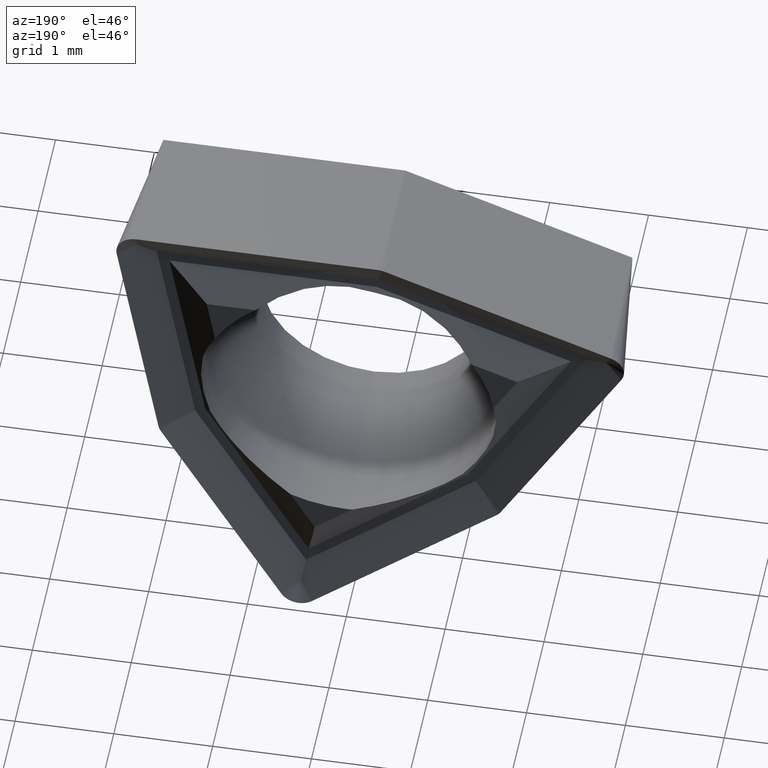
[diagram: clean part render]
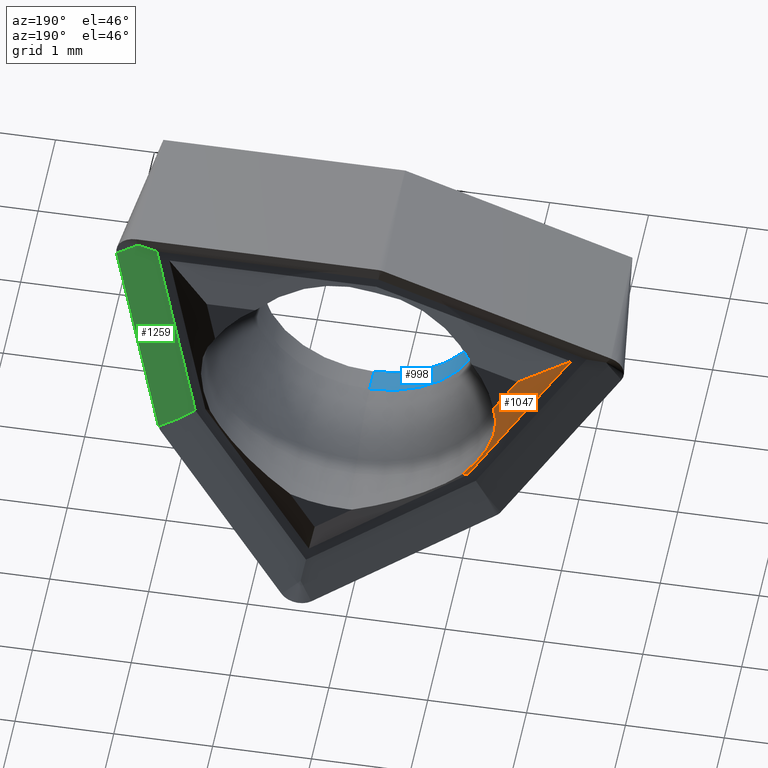
[diagram: same view with three faces highlighted in distinct colors, each labeled with its STEP entity id]
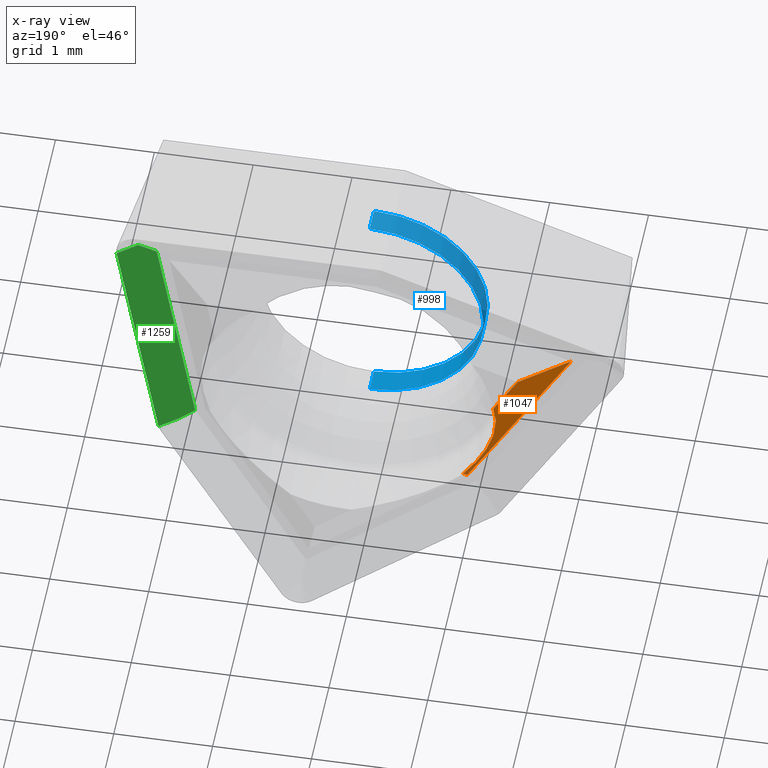
[diagram: x-ray of the same camera — body ghosted, the three highlighted faces saturated]
A machine part, auxiliary view with three faces highlighted in distinct colors.
The next image is the same camera in x-ray (body ghosted, the three faces saturated) — at least one of them is partly hidden behind the body in this view.
Their STEP definitions:

[orange] entity #1047 — the highlighted planar face has unit normal (0.433, -0.866, 0.25).
#6 = ORIENTED_EDGE ( 'NONE', *, *, #678, .T. ) ;
#35 = EDGE_CURVE ( 'NONE', #671, #658, #373, .T. ) ;
#58 = ORIENTED_EDGE ( 'NONE', *, *, #1179, .T. ) ;
#62 = LINE ( 'NONE', #275, #1003 ) ;
#227 = VECTOR ( 'NONE', #832, 1000.000000000000114 ) ;
#239 = CARTESIAN_POINT ( 'NONE',  ( -0.7587985745018965833, 0.1209591284558328289, -0.6367076040023706973 ) ) ;
#275 = CARTESIAN_POINT ( 'NONE',  ( -0.9217663674148020014, 0.000000000000000000, -0.7734538189293637123 ) ) ;
#286 = EDGE_CURVE ( 'NONE', #671, #1140, #1240, .T. ) ;
#373 = LINE ( 'NONE', #978, #377 ) ;
#377 = VECTOR ( 'NONE', #878, 1000.000000000000000 ) ;
#501 = EDGE_CURVE ( 'NONE', #823, #974, #62, .T. ) ;
#531 = CARTESIAN_POINT ( 'NONE',  ( -1.486070235163639008, 0.000000000000000000, 0.2039491509192579155 ) ) ;
#586 = DIRECTION ( 'NONE',  ( 0.8944271909999164105, 0.4472135954999567065, 0.000000000000000000 ) ) ;
#655 = ORIENTED_EDGE ( 'NONE', *, *, #501, .F. ) ;
#658 = VERTEX_POINT ( 'NONE', #783 ) ;
#671 = VERTEX_POINT ( 'NONE', #1137 ) ;
#674 = DIRECTION ( 'NONE',  ( -0.4999999999999969469, 0.000000000000000000, 0.8660254037844403729 ) ) ;
#678 = EDGE_CURVE ( 'NONE', #823, #1140, #1251, .T. ) ;
#681 = CARTESIAN_POINT ( 'NONE',  ( -1.149066664678476624, -0.1687084629627366994, -0.9641814145297975536 ) ) ;
#723 = ORIENTED_EDGE ( 'NONE', *, *, #35, .T. ) ;
#739 = LINE ( 'NONE', #1106, #227 ) ;
#753 = CARTESIAN_POINT ( 'NONE',  ( -1.486070235163639008, 0.000000000000000000, 0.2039491509192579155 ) ) ;
#774 = CARTESIAN_POINT ( 'NONE',  ( -0.9217663674148020014, 0.000000000000000000, -0.7734538189293637123 ) ) ;
#783 = CARTESIAN_POINT ( 'NONE',  ( -2.238771884344221252, -0.2000000000000000111, 0.8148463272133634749 ) ) ;
#823 = VERTEX_POINT ( 'NONE', #753 ) ;
#831 = CARTESIAN_POINT ( 'NONE',  ( -1.425364703757135976, -0.2118027706945900812, -0.6349022338310624791 ) ) ;
#832 = DIRECTION ( 'NONE',  ( 0.8809821475704302518, 0.3479270227670967497, -0.3206512786355557032 ) ) ;
#878 = DIRECTION ( 'NONE',  ( -0.4999999999999969469, -0.000000000000000000, 0.8660254037844403729 ) ) ;
#914 = EDGE_LOOP ( 'NONE', ( #6, #1158, #723, #58, #655 ) ) ;
#915 = CARTESIAN_POINT ( 'NONE',  ( -1.544514371942845576, -0.1521548644329672184, -0.2219025464079635024 ) ) ;
#918 = AXIS2_PLACEMENT_3D ( 'NONE', #774, #1073, #586 ) ;
#974 = VERTEX_POINT ( 'NONE', #1207 ) ;
#978 = CARTESIAN_POINT ( 'NONE',  ( -2.177853691503323308, -0.2000000000000000111, 0.7093329221076485336 ) ) ;
#1003 = VECTOR ( 'NONE', #674, 1000.000000000000000 ) ;
#1047 = ADVANCED_FACE ( 'NONE', ( #1266 ), #1098, .F. ) ;
#1073 = DIRECTION ( 'NONE',  ( 0.4330127018922184656, -0.8660254037844398178, 0.2499999999999975020 ) ) ;
#1098 = PLANE ( 'NONE',  #918 ) ;
#1106 = CARTESIAN_POINT ( 'NONE',  ( -0.7066256790643803409, 0.4050917934228667194, 0.2571907139475794746 ) ) ;
#1120 = CARTESIAN_POINT ( 'NONE',  ( -1.149066664678476624, -0.1687084629627366994, -0.9641814145297975536 ) ) ;
#1122 = DIRECTION ( 'NONE',  ( 0.6659287224921663917, 0.4942704104080671845, 0.5587805454335289523 ) ) ;
#1137 = CARTESIAN_POINT ( 'NONE',  ( -1.191225638481576699, -0.2000000000000000111, -0.9995569938987907133 ) ) ;
#1140 = VERTEX_POINT ( 'NONE', #681 ) ;
#1158 = ORIENTED_EDGE ( 'NONE', *, *, #286, .F. ) ;
#1179 = EDGE_CURVE ( 'NONE', #658, #974, #739, .T. ) ;
#1193 = VECTOR ( 'NONE', #1122, 1000.000000000000000 ) ;
#1207 = CARTESIAN_POINT ( 'NONE',  ( -1.732354107096627738, 0.000000000000000000, 0.6305253301919848674 ) ) ;
#1240 = LINE ( 'NONE', #239, #1193 ) ;
#1251 =( BOUNDED_CURVE ( )  B_SPLINE_CURVE ( 3, ( #531, #915, #831, #1120 ),
 .UNSPECIFIED., .F., .T. ) 
 B_SPLINE_CURVE_WITH_KNOTS ( ( 4, 4 ),
 ( 2.481605324202295293, 3.316125578789219652 ),
 .UNSPECIFIED. ) 
 CURVE ( )  GEOMETRIC_REPRESENTATION_ITEM ( )  RATIONAL_B_SPLINE_CURVE ( ( 1.000000000000000000, 0.9428018156119970516, 0.9428018156119970516, 1.000000000000000000 ) ) 
 REPRESENTATION_ITEM ( '' )  );
#1266 = FACE_OUTER_BOUND ( 'NONE', #914, .T. ) ;

[blue] entity #998 — the highlighted cylindrical surface (partial cylindrical patch) has radius 1.15 mm, axis along (-0, 1, -0).
#8 = AXIS2_PLACEMENT_3D ( 'NONE', #446, #744, #219 ) ;
#18 = CARTESIAN_POINT ( 'NONE',  ( 1.408343819019455535E-16, 1.234325842091266168, -1.149999999999999467 ) ) ;
#72 = EDGE_CURVE ( 'NONE', #643, #758, #104, .T. ) ;
#89 = ORIENTED_EDGE ( 'NONE', *, *, #72, .T. ) ;
#104 = CIRCLE ( 'NONE', #444, 1.149999999999999467 ) ;
#172 = DIRECTION ( 'NONE',  ( 0.000000000000000000, 0.000000000000000000, 1.000000000000000000 ) ) ;
#194 = DIRECTION ( 'NONE',  ( 0.000000000000000000, 0.000000000000000000, 1.000000000000000000 ) ) ;
#219 = DIRECTION ( 'NONE',  ( 0.000000000000000000, 0.000000000000000000, 1.000000000000000000 ) ) ;
#258 = LINE ( 'NONE', #876, #715 ) ;
#305 = EDGE_LOOP ( 'NONE', ( #1241, #502, #89, #985 ) ) ;
#335 = CARTESIAN_POINT ( 'NONE',  ( 0.000000000000000000, -1.342911620515460758, 1.149999999999999467 ) ) ;
#346 = VECTOR ( 'NONE', #422, 1000.000000000000000 ) ;
#371 = AXIS2_PLACEMENT_3D ( 'NONE', #728, #1009, #194 ) ;
#422 = DIRECTION ( 'NONE',  ( -0.000000000000000000, 1.000000000000000000, -0.000000000000000000 ) ) ;
#444 = AXIS2_PLACEMENT_3D ( 'NONE', #475, #785, #172 ) ;
#446 = CARTESIAN_POINT ( 'NONE',  ( 0.000000000000000000, -1.590000000170530559, 0.000000000000000000 ) ) ;
#458 = CIRCLE ( 'NONE', #8, 1.149999999999999467 ) ;
#475 = CARTESIAN_POINT ( 'NONE',  ( 0.000000000000000000, -1.342911620515460758, 0.000000000000000000 ) ) ;
#484 = EDGE_CURVE ( 'NONE', #919, #758, #258, .T. ) ;
#502 = ORIENTED_EDGE ( 'NONE', *, *, #786, .T. ) ;
#610 = FACE_OUTER_BOUND ( 'NONE', #305, .T. ) ;
#643 = VERTEX_POINT ( 'NONE', #1279 ) ;
#691 = EDGE_CURVE ( 'NONE', #782, #919, #458, .T. ) ;
#715 = VECTOR ( 'NONE', #779, 1000.000000000000000 ) ;
#728 = CARTESIAN_POINT ( 'NONE',  ( 0.000000000000000000, 1.234325842091266168, 0.000000000000000000 ) ) ;
#744 = DIRECTION ( 'NONE',  ( -0.000000000000000000, 1.000000000000000000, -0.000000000000000000 ) ) ;
#758 = VERTEX_POINT ( 'NONE', #335 ) ;
#779 = DIRECTION ( 'NONE',  ( -0.000000000000000000, 1.000000000000000000, -0.000000000000000000 ) ) ;
#782 = VERTEX_POINT ( 'NONE', #1048 ) ;
#785 = DIRECTION ( 'NONE',  ( -0.000000000000000000, 1.000000000000000000, -0.000000000000000000 ) ) ;
#786 = EDGE_CURVE ( 'NONE', #782, #643, #922, .T. ) ;
#795 = CARTESIAN_POINT ( 'NONE',  ( 0.000000000000000000, -1.590000000170530559, 1.149999999999999467 ) ) ;
#876 = CARTESIAN_POINT ( 'NONE',  ( 0.000000000000000000, 1.234325842091266168, 1.149999999999999467 ) ) ;
#919 = VERTEX_POINT ( 'NONE', #795 ) ;
#922 = LINE ( 'NONE', #18, #346 ) ;
#985 = ORIENTED_EDGE ( 'NONE', *, *, #484, .F. ) ;
#998 = ADVANCED_FACE ( 'NONE', ( #610 ), #1094, .F. ) ;
#1009 = DIRECTION ( 'NONE',  ( -0.000000000000000000, 1.000000000000000000, -0.000000000000000000 ) ) ;
#1048 = CARTESIAN_POINT ( 'NONE',  ( 1.408343819019455535E-16, -1.590000000170530559, -1.149999999999999467 ) ) ;
#1094 = CYLINDRICAL_SURFACE ( 'NONE', #371, 1.149999999999999467 ) ;
#1241 = ORIENTED_EDGE ( 'NONE', *, *, #691, .F. ) ;
#1279 = CARTESIAN_POINT ( 'NONE',  ( 1.586637985365908693E-16, -1.342911620515460758, -1.149999999999999467 ) ) ;

[green] entity #1259 — the highlighted planar face has unit normal (0.4924, -0.866, -0.0868).
#30 = DIRECTION ( 'NONE',  ( 0.8528685319524433872, 0.4999999999999980016, -0.1503837331804405986 ) ) ;
#47 = VERTEX_POINT ( 'NONE', #64 ) ;
#64 = CARTESIAN_POINT ( 'NONE',  ( 2.127280162780674111, -0.1154700538379240943, 1.784999999999997922 ) ) ;
#78 = VERTEX_POINT ( 'NONE', #1186 ) ;
#109 = VERTEX_POINT ( 'NONE', #403 ) ;
#114 = CARTESIAN_POINT ( 'NONE',  ( 0.9831281426191703643, -0.6697595319137981118, 0.8249424618717443591 ) ) ;
#131 = ORIENTED_EDGE ( 'NONE', *, *, #1271, .T. ) ;
#163 = DIRECTION ( 'NONE',  ( 0.8528685319524437203, 0.4999999999999978906, -0.1503837331804385169 ) ) ;
#193 = VERTEX_POINT ( 'NONE', #702 ) ;
#226 = PLANE ( 'NONE',  #562 ) ;
#242 = LINE ( 'NONE', #1239, #1268 ) ;
#248 = ORIENTED_EDGE ( 'NONE', *, *, #736, .F. ) ;
#253 = ORIENTED_EDGE ( 'NONE', *, *, #542, .T. ) ;
#269 = CARTESIAN_POINT ( 'NONE',  ( 2.324241713383114138, 0.000000000000000000, 1.750270364466611328 ) ) ;
#287 = LINE ( 'NONE', #714, #584 ) ;
#304 = VECTOR ( 'NONE', #163, 1000.000000000000227 ) ;
#313 = EDGE_CURVE ( 'NONE', #47, #441, #1021, .T. ) ;
#318 = CARTESIAN_POINT ( 'NONE',  ( 2.324241713383114583, 0.000000000000000000, 1.750270364466611328 ) ) ;
#339 = DIRECTION ( 'NONE',  ( -0.1736481776669338839, 0.000000000000000000, -0.9848077530122073542 ) ) ;
#374 = ORIENTED_EDGE ( 'NONE', *, *, #313, .T. ) ;
#403 = CARTESIAN_POINT ( 'NONE',  ( 1.703227176037524826, -0.1154700538379260649, -0.6199239942709414697 ) ) ;
#441 = VERTEX_POINT ( 'NONE', #269 ) ;
#513 = LINE ( 'NONE', #114, #1153 ) ;
#532 = DIRECTION ( 'NONE',  ( 0.8693082085170029671, 0.4942704104080669070, 0.000000000000000000 ) ) ;
#542 = EDGE_CURVE ( 'NONE', #441, #696, #287, .T. ) ;
#558 = VECTOR ( 'NONE', #1228, 999.9999999999998863 ) ;
#562 = AXIS2_PLACEMENT_3D ( 'NONE', #318, #804, #532 ) ;
#584 = VECTOR ( 'NONE', #1084, 1000.000000000000114 ) ;
#630 = VECTOR ( 'NONE', #30, 1000.000000000000114 ) ;
#665 = ORIENTED_EDGE ( 'NONE', *, *, #772, .F. ) ;
#667 = LINE ( 'NONE', #1065, #304 ) ;
#696 = VERTEX_POINT ( 'NONE', #839 ) ;
#702 = CARTESIAN_POINT ( 'NONE',  ( 1.952795326804329656, -0.2000000000000000111, 1.638589838486219863 ) ) ;
#714 = CARTESIAN_POINT ( 'NONE',  ( 2.324241713383115027, -1.705302565824240446E-10, 1.750270364466611328 ) ) ;
#725 = FACE_OUTER_BOUND ( 'NONE', #1010, .T. ) ;
#736 = EDGE_CURVE ( 'NONE', #78, #109, #1039, .T. ) ;
#772 = EDGE_CURVE ( 'NONE', #193, #78, #242, .T. ) ;
#804 = DIRECTION ( 'NONE',  ( 0.4924038765061017897, -0.8660254037844398178, -0.08682408883346659501 ) ) ;
#829 = EDGE_CURVE ( 'NONE', #109, #696, #667, .T. ) ;
#839 = CARTESIAN_POINT ( 'NONE',  ( 1.900188726639969294, 0.000000000000000000, -0.6546536298043282853 ) ) ;
#911 = DIRECTION ( 'NONE',  ( 0.7181832268395675900, 0.3479270227670965276, 0.6026272807587874647 ) ) ;
#992 = ORIENTED_EDGE ( 'NONE', *, *, #829, .F. ) ;
#1010 = EDGE_LOOP ( 'NONE', ( #253, #992, #248, #665, #131, #374 ) ) ;
#1021 = LINE ( 'NONE', #1031, #630 ) ;
#1027 = CARTESIAN_POINT ( 'NONE',  ( 1.588586686433653528, -0.1848354781678455960, -0.5781982684134266970 ) ) ;
#1031 = CARTESIAN_POINT ( 'NONE',  ( 2.324241713383114138, -1.251928832280959286E-16, 1.750270364466611328 ) ) ;
#1039 = LINE ( 'NONE', #1027, #558 ) ;
#1065 = CARTESIAN_POINT ( 'NONE',  ( 1.900188726639969072, 2.710505431213761085E-17, -0.6546536298043287294 ) ) ;
#1084 = DIRECTION ( 'NONE',  ( -0.1736481776669340504, 0.000000000000000000, -0.9848077530122073542 ) ) ;
#1153 = VECTOR ( 'NONE', #911, 1000.000000000000000 ) ;
#1186 = CARTESIAN_POINT ( 'NONE',  ( 1.563524225932032330, -0.2000000000000000111, -0.5690762787933650868 ) ) ;
#1228 = DIRECTION ( 'NONE',  ( 0.8168825087320448208, 0.4942704104080672955, -0.2973209180711671173 ) ) ;
#1239 = CARTESIAN_POINT ( 'NONE',  ( 1.909458272219967556, -0.2000000000000000111, 1.392813188706153671 ) ) ;
#1259 = ADVANCED_FACE ( 'NONE', ( #725 ), #226, .F. ) ;
#1268 = VECTOR ( 'NONE', #339, 1000.000000000000114 ) ;
#1271 = EDGE_CURVE ( 'NONE', #193, #47, #513, .T. ) ;